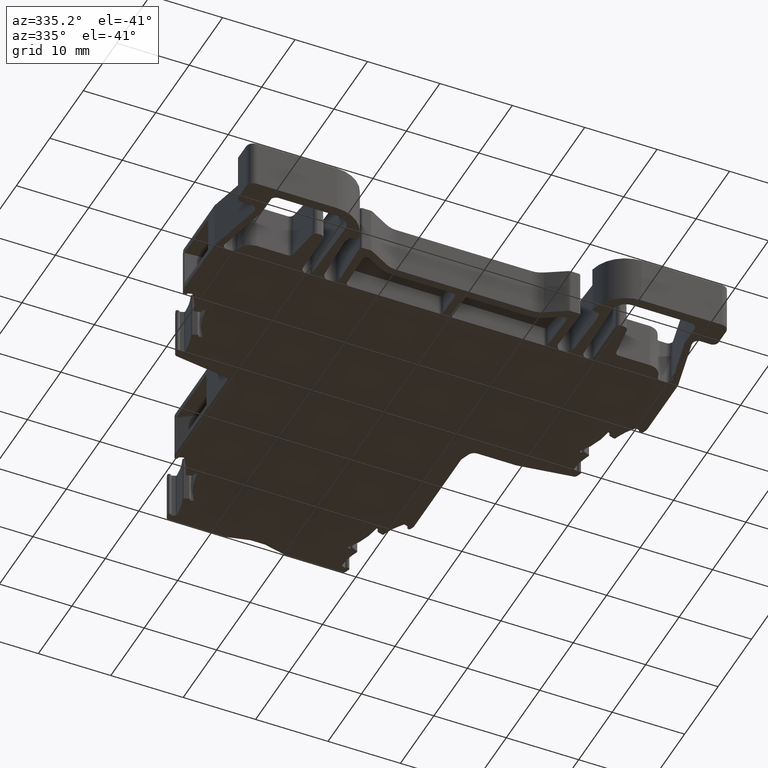
[diagram: clean part render]
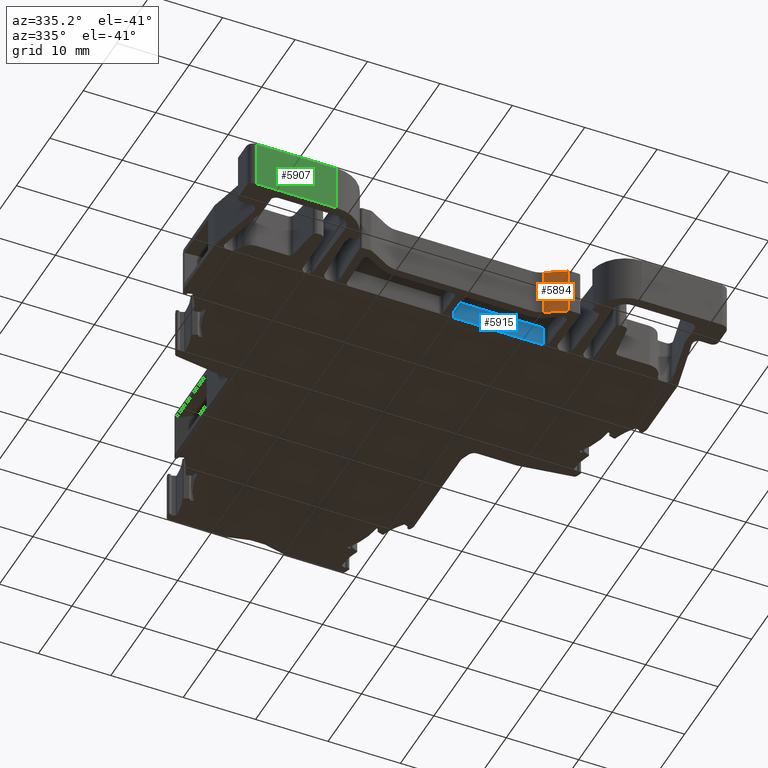
[diagram: same view with three faces highlighted in distinct colors, each labeled with its STEP entity id]
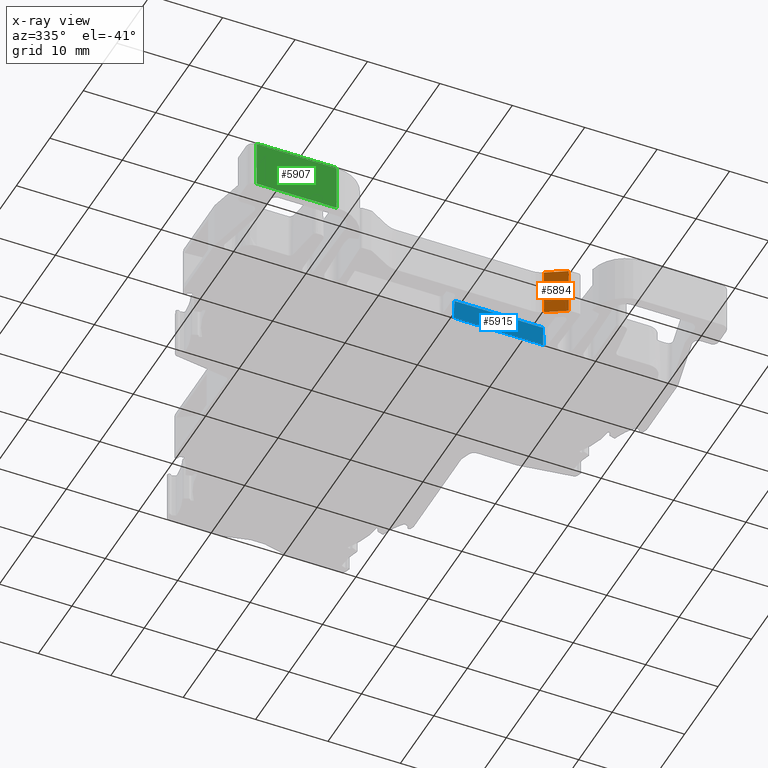
[diagram: x-ray of the same camera — body ghosted, the three highlighted faces saturated]
A machine part, auxiliary view with three faces highlighted in distinct colors.
The next image is the same camera in x-ray (body ghosted, the three faces saturated) — at least one of them is partly hidden behind the body in this view.
Their STEP definitions:

[orange] entity #5894 — the highlighted planar face has unit normal (0.5, 0.866, -0).
#1599 = VERTEX_POINT ( 'NONE', #12791 ) ;
#1608 = VERTEX_POINT ( 'NONE', #12799 ) ;
#1609 = VERTEX_POINT ( 'NONE', #12798 ) ;
#1645 = VERTEX_POINT ( 'NONE', #12833 ) ;
#3717 = PLANE ( 'NONE',  #11266 ) ;
#3718 = CARTESIAN_POINT ( 'NONE',  ( 13.52770432346043700, -25.89903470571811900, 5.883087449936323500 ) ) ;
#3722 = DIRECTION ( 'NONE',  ( 0.5000000000000008900, 0.8660254037844381500, -0.0000000000000000000 ) ) ;
#3734 = FACE_OUTER_BOUND ( 'NONE', #5207, .T. ) ;
#3744 = DIRECTION ( 'NONE',  ( -0.8660254037844381500, 0.5000000000000008900, 0.0000000000000000000 ) ) ;
#4137 = EDGE_CURVE ( 'NONE', #1599, #1609, #13218, .T. ) ;
#4208 = EDGE_CURVE ( 'NONE', #1645, #1608, #13299, .T. ) ;
#4538 = EDGE_CURVE ( 'NONE', #1609, #1645, #8971, .T. ) ;
#4664 = EDGE_CURVE ( 'NONE', #1599, #1608, #8862, .T. ) ;
#5207 = EDGE_LOOP ( 'NONE', ( #12106, #12141, #12145, #12010 ) ) ;
#5894 = ADVANCED_FACE ( 'NONE', ( #3734 ), #3717, .F. ) ;
#8838 = DIRECTION ( 'NONE',  ( 0.8660254037844381500, -0.5000000000000008900, 0.0000000000000000000 ) ) ;
#8852 = CARTESIAN_POINT ( 'NONE',  ( 13.52770432346043700, -25.89903470571811900, -0.3419125500636775400 ) ) ;
#8862 = LINE ( 'NONE', #8852, #9777 ) ;
#8971 = LINE ( 'NONE', #8976, #9660 ) ;
#8976 = CARTESIAN_POINT ( 'NONE',  ( 13.52770432346043700, -25.89903470571811900, 6.258087449936324400 ) ) ;
#8981 = DIRECTION ( 'NONE',  ( 0.8660254037844381500, -0.5000000000000008900, 0.0000000000000000000 ) ) ;
#9255 = VECTOR ( 'NONE', #13210, 1000.000000000000000 ) ;
#9660 = VECTOR ( 'NONE', #8981, 1000.000000000000100 ) ;
#9670 = VECTOR ( 'NONE', #13300, 1000.000000000000000 ) ;
#9777 = VECTOR ( 'NONE', #8838, 1000.000000000000100 ) ;
#11266 = AXIS2_PLACEMENT_3D ( 'NONE', #3718, #3722, #3744 ) ;
#12010 = ORIENTED_EDGE ( 'NONE', *, *, #4664, .T. ) ;
#12106 = ORIENTED_EDGE ( 'NONE', *, *, #4208, .F. ) ;
#12141 = ORIENTED_EDGE ( 'NONE', *, *, #4538, .F. ) ;
#12145 = ORIENTED_EDGE ( 'NONE', *, *, #4137, .F. ) ;
#12791 = CARTESIAN_POINT ( 'NONE',  ( 10.85066863098555600, -24.35344742803750500, -0.3419125500636775400 ) ) ;
#12798 = CARTESIAN_POINT ( 'NONE',  ( 10.85066863098555600, -24.35344742803750500, 6.258087449936324400 ) ) ;
#12799 = CARTESIAN_POINT ( 'NONE',  ( 13.52770432346043700, -25.89903470571811900, -0.3419125500636775400 ) ) ;
#12833 = CARTESIAN_POINT ( 'NONE',  ( 13.52770432346043700, -25.89903470571811900, 6.258087449936324400 ) ) ;
#13198 = CARTESIAN_POINT ( 'NONE',  ( 10.85066863098555600, -24.35344742803750500, 5.883087449936323500 ) ) ;
#13210 = DIRECTION ( 'NONE',  ( 0.0000000000000000000, 0.0000000000000000000, 1.000000000000000000 ) ) ;
#13218 = LINE ( 'NONE', #13198, #9255 ) ;
#13299 = LINE ( 'NONE', #13307, #9670 ) ;
#13300 = DIRECTION ( 'NONE',  ( -0.0000000000000000000, -0.0000000000000000000, -1.000000000000000000 ) ) ;
#13307 = CARTESIAN_POINT ( 'NONE',  ( 13.52770432346043700, -25.89903470571811900, 5.883087449936323500 ) ) ;

[blue] entity #5915 — the highlighted planar face has unit normal (0, 0.9998, 0.0175).
#1552 = VERTEX_POINT ( 'NONE', #8175 ) ;
#1562 = VERTEX_POINT ( 'NONE', #8159 ) ;
#1566 = VERTEX_POINT ( 'NONE', #7992 ) ;
#1570 = VERTEX_POINT ( 'NONE', #13361 ) ;
#2479 = LINE ( 'NONE', #2500, #10886 ) ;
#2500 = CARTESIAN_POINT ( 'NONE',  ( 0.5361705917652822600, -18.69386401313102300, 2.458087449936321900 ) ) ;
#2516 = DIRECTION ( 'NONE',  ( 1.000000000000000000, -8.323728279257474000E-015, -1.452912175592804000E-016 ) ) ;
#2950 = FACE_OUTER_BOUND ( 'NONE', #4982, .T. ) ;
#3431 = DIRECTION ( 'NONE',  ( 0.0000000000000000000, -0.01745240643728355000, 0.9998476951563911600 ) ) ;
#3434 = CARTESIAN_POINT ( 'NONE',  ( 0.5361705917652822600, -18.65153548068009200, 0.03308744993632267000 ) ) ;
#3443 = DIRECTION ( 'NONE',  ( 8.324996216504272600E-015, 0.9998476951563912700, 0.01745240643728355300 ) ) ;
#3444 = PLANE ( 'NONE',  #11265 ) ;
#4098 = EDGE_CURVE ( 'NONE', #1552, #1562, #13086, .T. ) ;
#4124 = EDGE_CURVE ( 'NONE', #1570, #1566, #13144, .T. ) ;
#4257 = ORIENTED_EDGE ( 'NONE', *, *, #4124, .F. ) ;
#4679 = EDGE_CURVE ( 'NONE', #1570, #1562, #8886, .T. ) ;
#4982 = EDGE_LOOP ( 'NONE', ( #12057, #12058, #4257, #12071 ) ) ;
#5915 = ADVANCED_FACE ( 'NONE', ( #2950 ), #3444, .F. ) ;
#6097 = EDGE_CURVE ( 'NONE', #1566, #1552, #2479, .T. ) ;
#7992 = CARTESIAN_POINT ( 'NONE',  ( 1.078422971795300900, -18.69386401313097000, 2.458087449936323200 ) ) ;
#8159 = CARTESIAN_POINT ( 'NONE',  ( 13.39317798815532100, -18.64498983133211900, -0.3419125500636775400 ) ) ;
#8175 = CARTESIAN_POINT ( 'NONE',  ( 13.34592823307539300, -18.69386401313118600, 2.458087449936319200 ) ) ;
#8880 = DIRECTION ( 'NONE',  ( 1.000000000000000000, -8.326264346893471800E-015, 0.0000000000000000000 ) ) ;
#8884 = CARTESIAN_POINT ( 'NONE',  ( 0.5361705917652823700, -18.64498983133201200, -0.3419125500636773200 ) ) ;
#8886 = LINE ( 'NONE', #8884, #9764 ) ;
#9202 = VECTOR ( 'NONE', #13111, 1000.000000000000200 ) ;
#9282 = VECTOR ( 'NONE', #13175, 1000.000000000000100 ) ;
#9764 = VECTOR ( 'NONE', #8880, 1000.000000000000000 ) ;
#10886 = VECTOR ( 'NONE', #2516, 1000.000000000000000 ) ;
#11265 = AXIS2_PLACEMENT_3D ( 'NONE', #3434, #3443, #3431 ) ;
#12057 = ORIENTED_EDGE ( 'NONE', *, *, #4098, .F. ) ;
#12058 = ORIENTED_EDGE ( 'NONE', *, *, #6097, .F. ) ;
#12071 = ORIENTED_EDGE ( 'NONE', *, *, #4679, .T. ) ;
#13086 = LINE ( 'NONE', #13130, #9202 ) ;
#13111 = DIRECTION ( 'NONE',  ( 0.01686994133532252300, 0.01744992282745331000, -0.9997054092444727100 ) ) ;
#13130 = CARTESIAN_POINT ( 'NONE',  ( 13.34592823307536900, -18.69386401313113000, 2.458087449936320100 ) ) ;
#13144 = LINE ( 'NONE', #13173, #9282 ) ;
#13173 = CARTESIAN_POINT ( 'NONE',  ( 1.036530815968681500, -18.65197185730330200, 0.05808744993632158200 ) ) ;
#13175 = DIRECTION ( 'NONE',  ( 0.01744974916022642600, -0.01744974916068355000, 0.9996954598818954500 ) ) ;
#13361 = CARTESIAN_POINT ( 'NONE',  ( 1.029548789997577000, -18.64498983133201500, -0.3419125500636773200 ) ) ;

[green] entity #5907 — the highlighted planar face has unit normal (-0, 1, 0).
#1557 = VERTEX_POINT ( 'NONE', #8156 ) ;
#1559 = VERTEX_POINT ( 'NONE', #8152 ) ;
#1749 = VERTEX_POINT ( 'NONE', #12957 ) ;
#1760 = VERTEX_POINT ( 'NONE', #12948 ) ;
#3769 = CARTESIAN_POINT ( 'NONE',  ( -21.08877788296954100, -31.55153548068216600, 5.883087449936323500 ) ) ;
#3776 = FACE_OUTER_BOUND ( 'NONE', #5072, .T. ) ;
#3788 = PLANE ( 'NONE',  #11296 ) ;
#3794 = DIRECTION ( 'NONE',  ( -5.012274064805469700E-014, 1.000000000000000000, 0.0000000000000000000 ) ) ;
#3801 = DIRECTION ( 'NONE',  ( -1.000000000000000000, -5.012274064805469700E-014, 0.0000000000000000000 ) ) ;
#4235 = EDGE_CURVE ( 'NONE', #1559, #1557, #13342, .T. ) ;
#4489 = EDGE_CURVE ( 'NONE', #1557, #1749, #7118, .T. ) ;
#4639 = EDGE_CURVE ( 'NONE', #1559, #1760, #8815, .T. ) ;
#4674 = EDGE_CURVE ( 'NONE', #1749, #1760, #8849, .T. ) ;
#5072 = EDGE_LOOP ( 'NONE', ( #12099, #12127, #12107, #12082 ) ) ;
#5907 = ADVANCED_FACE ( 'NONE', ( #3776 ), #3788, .F. ) ;
#7118 = LINE ( 'NONE', #7173, #9541 ) ;
#7166 = DIRECTION ( 'NONE',  ( 1.000000000000000000, 5.012274064805469700E-014, 0.0000000000000000000 ) ) ;
#7173 = CARTESIAN_POINT ( 'NONE',  ( -21.08877788296954100, -31.55153548068216600, 6.258087449936324400 ) ) ;
#8152 = CARTESIAN_POINT ( 'NONE',  ( -32.16382096990460600, -31.55153548068272000, -0.3419125500636775400 ) ) ;
#8156 = CARTESIAN_POINT ( 'NONE',  ( -32.16382096990460600, -31.55153548068272000, 6.258087449936324400 ) ) ;
#8794 = DIRECTION ( 'NONE',  ( 1.000000000000000000, 5.012274064805469700E-014, 0.0000000000000000000 ) ) ;
#8803 = CARTESIAN_POINT ( 'NONE',  ( -21.08877788296954100, -31.55153548068216600, -0.3419125500636775400 ) ) ;
#8815 = LINE ( 'NONE', #8803, #9804 ) ;
#8849 = LINE ( 'NONE', #8870, #9789 ) ;
#8870 = CARTESIAN_POINT ( 'NONE',  ( -21.08877788296953800, -31.55153548068192400, 5.883087449936323500 ) ) ;
#8887 = DIRECTION ( 'NONE',  ( 0.0000000000000000000, 0.0000000000000000000, -1.000000000000000000 ) ) ;
#9541 = VECTOR ( 'NONE', #7166, 1000.000000000000000 ) ;
#9789 = VECTOR ( 'NONE', #8887, 1000.000000000000000 ) ;
#9804 = VECTOR ( 'NONE', #8794, 1000.000000000000000 ) ;
#10430 = VECTOR ( 'NONE', #13230, 1000.000000000000000 ) ;
#11296 = AXIS2_PLACEMENT_3D ( 'NONE', #3769, #3794, #3801 ) ;
#12082 = ORIENTED_EDGE ( 'NONE', *, *, #4639, .T. ) ;
#12099 = ORIENTED_EDGE ( 'NONE', *, *, #4674, .F. ) ;
#12107 = ORIENTED_EDGE ( 'NONE', *, *, #4235, .F. ) ;
#12127 = ORIENTED_EDGE ( 'NONE', *, *, #4489, .F. ) ;
#12948 = CARTESIAN_POINT ( 'NONE',  ( -21.08877788296953800, -31.55153548068192400, -0.3419125500636775400 ) ) ;
#12957 = CARTESIAN_POINT ( 'NONE',  ( -21.08877788296953800, -31.55153548068192400, 6.258087449936324400 ) ) ;
#13230 = DIRECTION ( 'NONE',  ( 0.0000000000000000000, 0.0000000000000000000, 1.000000000000000000 ) ) ;
#13335 = CARTESIAN_POINT ( 'NONE',  ( -32.16382096990460600, -31.55153548068272000, 5.883087449936323500 ) ) ;
#13342 = LINE ( 'NONE', #13335, #10430 ) ;